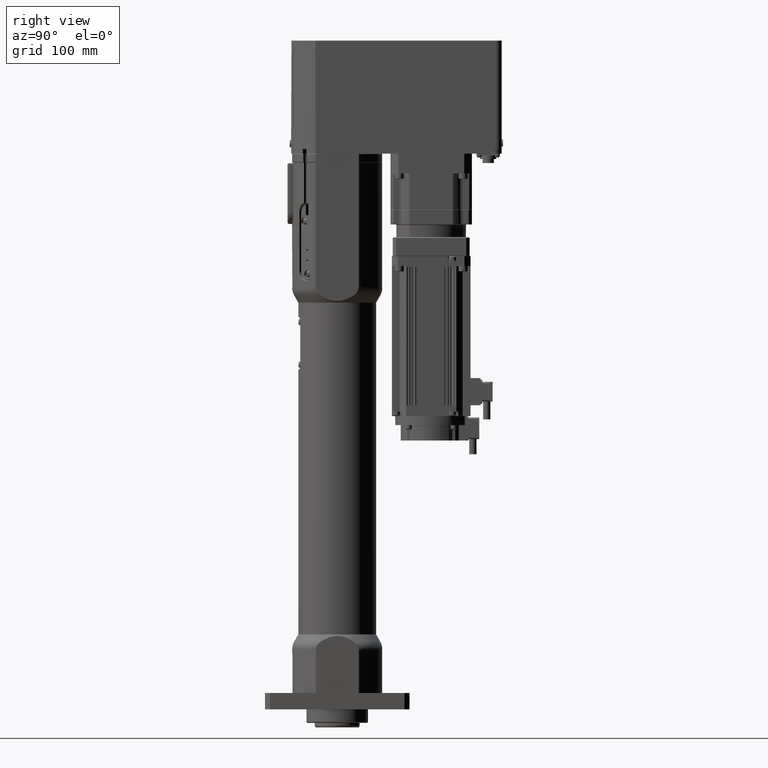
[diagram: clean part render]
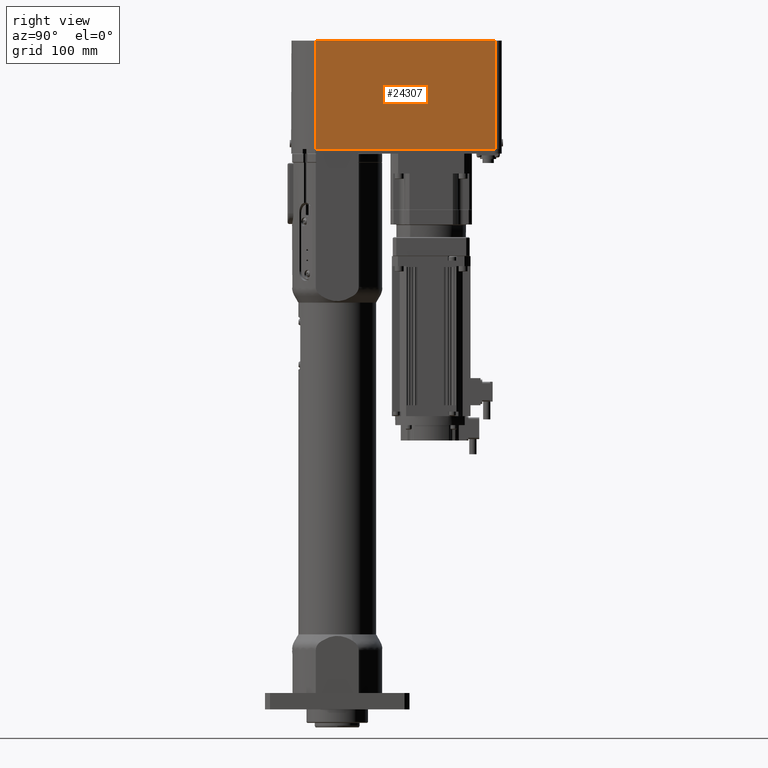
[diagram: same view with one face highlighted and labeled with its STEP entity id]
A machine part, right view. The second image highlights one B-rep face of the part: STEP entity #24307.
In plain terms, the highlighted planar face has unit normal (1, -0, -0).
Its self-contained STEP definition (entity closure, byte-faithful):
#1064=LINE('',#36640,#2819);
#1886=LINE('',#39731,#3641);
#1888=LINE('',#39774,#3643);
#1889=LINE('',#39776,#3644);
#1890=LINE('',#39777,#3645);
#2819=VECTOR('',#29136,10.);
#3641=VECTOR('',#31992,10.);
#3643=VECTOR('',#31998,10.);
#3644=VECTOR('',#31999,10.);
#3645=VECTOR('',#32000,10.);
#4658=PLANE('',#26532);
#6161=FACE_OUTER_BOUND('',#7704,.T.);
#7704=EDGE_LOOP('',(#19266,#19267,#19268,#19269,#19270));
#10144=VERTEX_POINT('',#36532);
#10173=VERTEX_POINT('',#36639);
#11020=VERTEX_POINT('',#39730);
#11022=VERTEX_POINT('',#39773);
#11023=VERTEX_POINT('',#39775);
#12612=EDGE_CURVE('',#10173,#10144,#1064,.T.);
#13950=EDGE_CURVE('',#10173,#11020,#1886,.T.);
#13955=EDGE_CURVE('',#10144,#11022,#1888,.T.);
#13956=EDGE_CURVE('',#11022,#11023,#1889,.T.);
#13957=EDGE_CURVE('',#11020,#11023,#1890,.T.);
#19266=ORIENTED_EDGE('',*,*,#12612,.T.);
#19267=ORIENTED_EDGE('',*,*,#13955,.T.);
#19268=ORIENTED_EDGE('',*,*,#13956,.T.);
#19269=ORIENTED_EDGE('',*,*,#13957,.F.);
#19270=ORIENTED_EDGE('',*,*,#13950,.F.);
#24307=ADVANCED_FACE('',(#6161),#4658,.T.);
#26532=AXIS2_PLACEMENT_3D('',#39772,#31996,#31997);
#29136=DIRECTION('',(2.36218811500386E-15,1.,1.22464679914725E-16));
#31992=DIRECTION('',(1.58874843403225E-13,-1.22464679915104E-16,1.));
#31996=DIRECTION('center_axis',(1.,-5.39664265494668E-14,-1.58874843403225E-13));
#31997=DIRECTION('ref_axis',(5.40012479177676E-14,1.,0.));
#31998=DIRECTION('',(5.39664265494668E-14,1.,1.2246467990653E-16));
#31999=DIRECTION('',(1.58874843403225E-13,-1.22464679915104E-16,1.));
#32000=DIRECTION('',(5.39664265494668E-14,1.,1.2246467990653E-16));
#36532=CARTESIAN_POINT('',(45.0000000000991,174.000000000014,619.999999999992));
#36639=CARTESIAN_POINT('',(45.0000000000986,-23.9999999999857,619.999999999992));
#36640=CARTESIAN_POINT('',(45.0000000000986,-23.9999999999857,619.999999999992));
#39730=CARTESIAN_POINT('',(45.0000000001165,-23.9999999999959,739.999999999992));
#39731=CARTESIAN_POINT('',(45.0000000000974,-23.9999999999959,619.999999999992));
#39772=CARTESIAN_POINT('Origin',(45.0000000000974,-23.9999999999959,619.999999999992));
#39773=CARTESIAN_POINT('',(45.0000000001082,175.399999999987,619.999999999992));
#39774=CARTESIAN_POINT('',(45.0000000000974,-23.9999999999959,619.999999999992));
#39775=CARTESIAN_POINT('',(45.0000000001272,175.399999999987,739.999999999992));
#39776=CARTESIAN_POINT('',(45.0000000001082,175.399999999987,619.999999999992));
#39777=CARTESIAN_POINT('',(45.0000000001165,-23.9999999999959,739.999999999992));